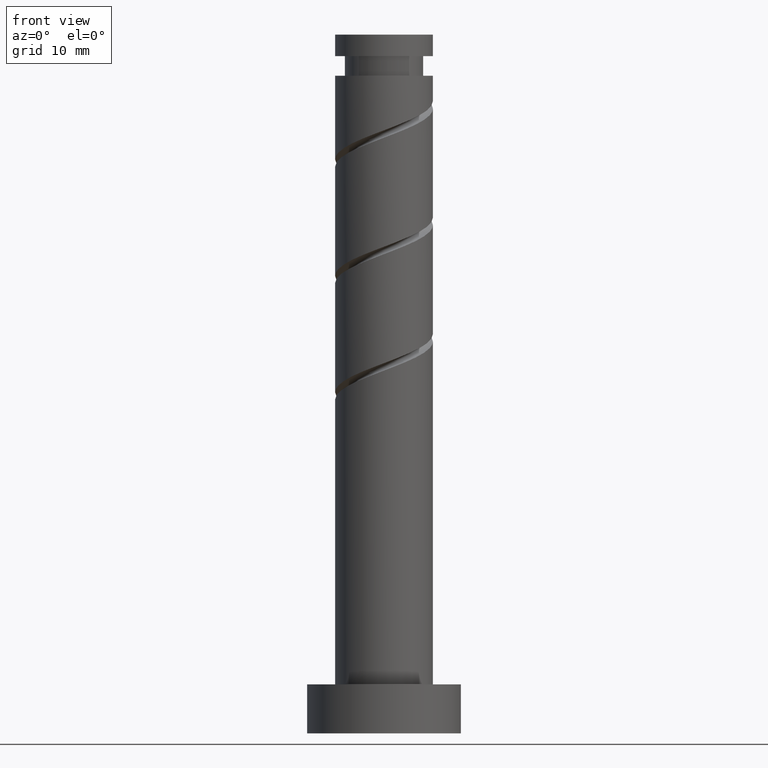
[diagram: clean part render]
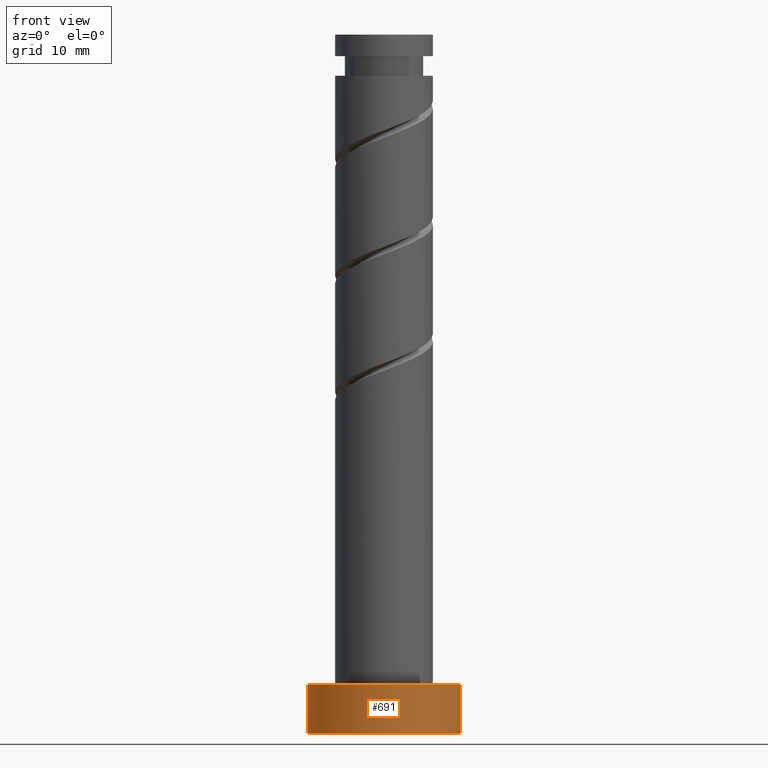
[diagram: same view with one face highlighted and labeled with its STEP entity id]
A machine part, front view. The second image highlights one B-rep face of the part: STEP entity #691.
In plain terms, the highlighted cylindrical surface (partial cylindrical patch) has radius 11 mm, axis along (-0, -0, -1).
Its self-contained STEP definition (entity closure, byte-faithful):
#17 = DIRECTION ( 'NONE',  ( 1.000000000000000000, 0.000000000000000000, 0.000000000000000000 ) ) ;
#122 = VERTEX_POINT ( 'NONE', #1044 ) ;
#183 = FACE_OUTER_BOUND ( 'NONE', #1465, .T. ) ;
#204 = VECTOR ( 'NONE', #679, 1000.000000000000000 ) ;
#236 = DIRECTION ( 'NONE',  ( -0.000000000000000000, -0.000000000000000000, -1.000000000000000000 ) ) ;
#264 = CARTESIAN_POINT ( 'NONE',  ( 0.000000000000000000, 0.000000000000000000, 0.000000000000000000 ) ) ;
#307 = VERTEX_POINT ( 'NONE', #946 ) ;
#327 = CARTESIAN_POINT ( 'NONE',  ( -11.00000000000000000, 0.000000000000000000, 7.000000000000000000 ) ) ;
#411 = ORIENTED_EDGE ( 'NONE', *, *, #718, .T. ) ;
#417 = VECTOR ( 'NONE', #236, 1000.000000000000000 ) ;
#440 = VERTEX_POINT ( 'NONE', #1298 ) ;
#480 = EDGE_CURVE ( 'NONE', #122, #440, #489, .T. ) ;
#489 = CIRCLE ( 'NONE', #803, 11.00000000000000000 ) ;
#535 = CIRCLE ( 'NONE', #1237, 11.00000000000000000 ) ;
#642 = CYLINDRICAL_SURFACE ( 'NONE', #1210, 11.00000000000000000 ) ;
#677 = ORIENTED_EDGE ( 'NONE', *, *, #692, .F. ) ;
#679 = DIRECTION ( 'NONE',  ( -0.000000000000000000, -0.000000000000000000, -1.000000000000000000 ) ) ;
#686 = DIRECTION ( 'NONE',  ( -0.000000000000000000, -0.000000000000000000, -1.000000000000000000 ) ) ;
#691 = ADVANCED_FACE ( 'NONE', ( #183 ), #642, .T. ) ;
#692 = EDGE_CURVE ( 'NONE', #440, #307, #1258, .T. ) ;
#718 = EDGE_CURVE ( 'NONE', #122, #1409, #774, .T. ) ;
#774 = LINE ( 'NONE', #327, #204 ) ;
#803 = AXIS2_PLACEMENT_3D ( 'NONE', #1413, #838, #1152 ) ;
#815 = DIRECTION ( 'NONE',  ( 0.000000000000000000, 0.000000000000000000, 1.000000000000000000 ) ) ;
#838 = DIRECTION ( 'NONE',  ( 0.000000000000000000, 0.000000000000000000, 1.000000000000000000 ) ) ;
#946 = CARTESIAN_POINT ( 'NONE',  ( 11.00000000000000000, 1.347111479062088405E-15, 0.000000000000000000 ) ) ;
#1044 = CARTESIAN_POINT ( 'NONE',  ( -11.00000000000000000, 0.000000000000000000, 7.000000000000000000 ) ) ;
#1118 = CARTESIAN_POINT ( 'NONE',  ( 0.000000000000000000, 0.000000000000000000, 7.000000000000000000 ) ) ;
#1152 = DIRECTION ( 'NONE',  ( 1.000000000000000000, 0.000000000000000000, 0.000000000000000000 ) ) ;
#1157 = ORIENTED_EDGE ( 'NONE', *, *, #1436, .T. ) ;
#1210 = AXIS2_PLACEMENT_3D ( 'NONE', #1118, #686, #1236 ) ;
#1233 = CARTESIAN_POINT ( 'NONE',  ( -11.00000000000000000, 0.000000000000000000, 0.000000000000000000 ) ) ;
#1236 = DIRECTION ( 'NONE',  ( -1.000000000000000000, 0.000000000000000000, 0.000000000000000000 ) ) ;
#1237 = AXIS2_PLACEMENT_3D ( 'NONE', #264, #815, #17 ) ;
#1258 = LINE ( 'NONE', #1352, #417 ) ;
#1298 = CARTESIAN_POINT ( 'NONE',  ( 11.00000000000000000, 1.347111479062088405E-15, 7.000000000000000000 ) ) ;
#1352 = CARTESIAN_POINT ( 'NONE',  ( 11.00000000000000000, 1.347111479062088405E-15, 7.000000000000000000 ) ) ;
#1377 = ORIENTED_EDGE ( 'NONE', *, *, #480, .F. ) ;
#1409 = VERTEX_POINT ( 'NONE', #1233 ) ;
#1413 = CARTESIAN_POINT ( 'NONE',  ( 0.000000000000000000, 0.000000000000000000, 7.000000000000000000 ) ) ;
#1436 = EDGE_CURVE ( 'NONE', #1409, #307, #535, .T. ) ;
#1465 = EDGE_LOOP ( 'NONE', ( #677, #1377, #411, #1157 ) ) ;